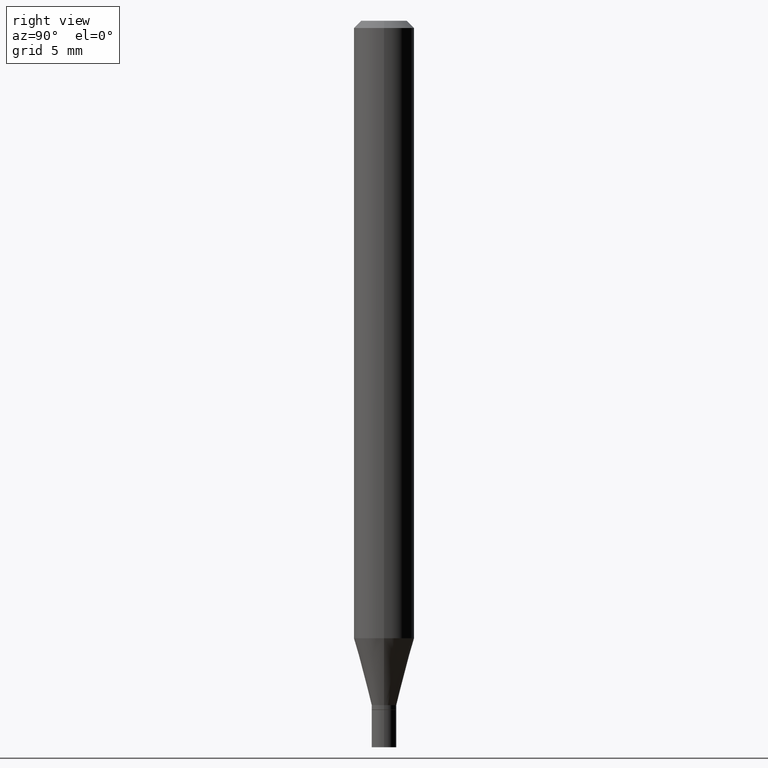
[diagram: clean part render]
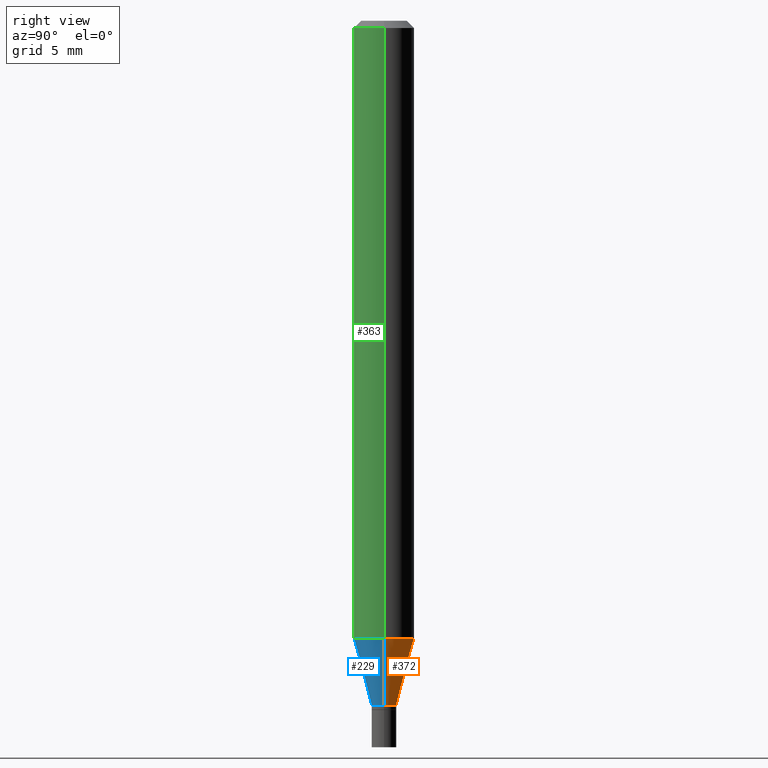
[diagram: same view with three faces highlighted in distinct colors, each labeled with its STEP entity id]
A machine part, right view with three faces highlighted in distinct colors.
Their STEP definitions:

[orange] entity #372 — the highlighted conical surface has half-angle 15 deg.
#9 = CARTESIAN_POINT ( 'NONE',  ( 3.117762711318311949E-29, -4.451338859026439617E-15, -1.274914120119951644 ) ) ;
#16 = CARTESIAN_POINT ( 'NONE',  ( 3.455447423139598357E-29, -4.933463131785365512E-15, -1.413000000000000256 ) ) ;
#39 = DIRECTION ( 'NONE',  ( -0.2588190451025212391, 5.211531920934549464E-15, 0.9659258262890679791 ) ) ;
#45 = DIRECTION ( 'NONE',  ( 1.000000000000000000, -6.982962677686262766E-15, 0.000000000000000000 ) ) ;
#46 = DIRECTION ( 'NONE',  ( 1.000000000000000000, -6.982962677686259611E-15, 0.000000000000000000 ) ) ;
#53 = DIRECTION ( 'NONE',  ( 0.2588190451025212391, 1.565188264969622362E-15, 0.9659258262890679791 ) ) ;
#74 = FACE_OUTER_BOUND ( 'NONE', #281, .T. ) ;
#76 = ORIENTED_EDGE ( 'NONE', *, *, #176, .F. ) ;
#77 = CARTESIAN_POINT ( 'NONE',  ( 0.06250000000000000000, -4.887774026381831286E-15, -1.274914120119951644 ) ) ;
#100 = CIRCLE ( 'NONE', #251, 0.06250000000000000000 ) ;
#110 = LINE ( 'NONE', #182, #130 ) ;
#119 = VECTOR ( 'NONE', #53, 39.37007874015748854 ) ;
#121 = CARTESIAN_POINT ( 'NONE',  ( 0.02549999999999991857, -5.111528680066364398E-15, -1.413000000000000256 ) ) ;
#124 = AXIS2_PLACEMENT_3D ( 'NONE', #16, #149, #346 ) ;
#130 = VECTOR ( 'NONE', #39, 39.37007874015748854 ) ;
#149 = DIRECTION ( 'NONE',  ( -2.445468806185136597E-29, 3.491481338843145583E-15, 1.000000000000000000 ) ) ;
#168 = CIRCLE ( 'NONE', #124, 0.02549999999999991857 ) ;
#175 = ORIENTED_EDGE ( 'NONE', *, *, #338, .T. ) ;
#176 = EDGE_CURVE ( 'NONE', #252, #283, #191, .T. ) ;
#182 = CARTESIAN_POINT ( 'NONE',  ( -0.02549999999999991857, -4.752274734166540987E-15, -1.413000000000000256 ) ) ;
#191 = LINE ( 'NONE', #292, #119 ) ;
#196 = EDGE_CURVE ( 'NONE', #252, #326, #168, .T. ) ;
#206 = EDGE_CURVE ( 'NONE', #283, #249, #100, .T. ) ;
#227 = DIRECTION ( 'NONE',  ( -2.445468806185136597E-29, 3.491481338843145583E-15, 1.000000000000000000 ) ) ;
#231 = CONICAL_SURFACE ( 'NONE', #368, 0.02549999999999991857, 0.2617993877991499629 ) ;
#249 = VERTEX_POINT ( 'NONE', #294 ) ;
#251 = AXIS2_PLACEMENT_3D ( 'NONE', #9, #227, #45 ) ;
#252 = VERTEX_POINT ( 'NONE', #121 ) ;
#275 = ORIENTED_EDGE ( 'NONE', *, *, #196, .T. ) ;
#281 = EDGE_LOOP ( 'NONE', ( #275, #175, #340, #76 ) ) ;
#283 = VERTEX_POINT ( 'NONE', #77 ) ;
#292 = CARTESIAN_POINT ( 'NONE',  ( 0.02549999999999991857, -5.111528680066364398E-15, -1.413000000000000256 ) ) ;
#294 = CARTESIAN_POINT ( 'NONE',  ( -0.06250000000000000000, -4.007249649176377790E-15, -1.274914120119951644 ) ) ;
#300 = CARTESIAN_POINT ( 'NONE',  ( -0.02549999999999991857, -4.379762191671458599E-15, -1.413000000000000256 ) ) ;
#326 = VERTEX_POINT ( 'NONE', #300 ) ;
#338 = EDGE_CURVE ( 'NONE', #326, #249, #110, .T. ) ;
#340 = ORIENTED_EDGE ( 'NONE', *, *, #206, .F. ) ;
#346 = DIRECTION ( 'NONE',  ( 1.000000000000000000, -6.982962677686259611E-15, 0.000000000000000000 ) ) ;
#368 = AXIS2_PLACEMENT_3D ( 'NONE', #446, #371, #46 ) ;
#371 = DIRECTION ( 'NONE',  ( -2.445468806185136597E-29, 3.491481338843145583E-15, 1.000000000000000000 ) ) ;
#372 = ADVANCED_FACE ( 'NONE', ( #74 ), #231, .T. ) ;
#446 = CARTESIAN_POINT ( 'NONE',  ( 3.455447423139598357E-29, -4.933463131785365512E-15, -1.413000000000000256 ) ) ;

[blue] entity #229 — the highlighted conical surface has half-angle 15 deg.
#1 = EDGE_CURVE ( 'NONE', #326, #252, #396, .T. ) ;
#37 = DIRECTION ( 'NONE',  ( 1.000000000000000000, -6.982962677686259611E-15, 0.000000000000000000 ) ) ;
#39 = DIRECTION ( 'NONE',  ( -0.2588190451025212391, 5.211531920934549464E-15, 0.9659258262890679791 ) ) ;
#47 = ORIENTED_EDGE ( 'NONE', *, *, #176, .T. ) ;
#53 = DIRECTION ( 'NONE',  ( 0.2588190451025212391, 1.565188264969622362E-15, 0.9659258262890679791 ) ) ;
#68 = EDGE_LOOP ( 'NONE', ( #463, #285, #47, #112 ) ) ;
#77 = CARTESIAN_POINT ( 'NONE',  ( 0.06250000000000000000, -4.887774026381831286E-15, -1.274914120119951644 ) ) ;
#79 = DIRECTION ( 'NONE',  ( -2.445468806185136597E-29, 3.491481338843145583E-15, 1.000000000000000000 ) ) ;
#110 = LINE ( 'NONE', #182, #130 ) ;
#112 = ORIENTED_EDGE ( 'NONE', *, *, #242, .F. ) ;
#119 = VECTOR ( 'NONE', #53, 39.37007874015748854 ) ;
#120 = DIRECTION ( 'NONE',  ( -2.445468806185136597E-29, 3.491481338843145583E-15, 1.000000000000000000 ) ) ;
#121 = CARTESIAN_POINT ( 'NONE',  ( 0.02549999999999991857, -5.111528680066364398E-15, -1.413000000000000256 ) ) ;
#129 = AXIS2_PLACEMENT_3D ( 'NONE', #153, #280, #37 ) ;
#130 = VECTOR ( 'NONE', #39, 39.37007874015748854 ) ;
#145 = DIRECTION ( 'NONE',  ( 1.000000000000000000, -6.982962677686262766E-15, 0.000000000000000000 ) ) ;
#153 = CARTESIAN_POINT ( 'NONE',  ( 3.455447423139598357E-29, -4.933463131785365512E-15, -1.413000000000000256 ) ) ;
#176 = EDGE_CURVE ( 'NONE', #252, #283, #191, .T. ) ;
#179 = DIRECTION ( 'NONE',  ( 1.000000000000000000, -6.982962677686259611E-15, 0.000000000000000000 ) ) ;
#182 = CARTESIAN_POINT ( 'NONE',  ( -0.02549999999999991857, -4.752274734166540987E-15, -1.413000000000000256 ) ) ;
#191 = LINE ( 'NONE', #292, #119 ) ;
#193 = AXIS2_PLACEMENT_3D ( 'NONE', #449, #120, #179 ) ;
#229 = ADVANCED_FACE ( 'NONE', ( #259 ), #387, .T. ) ;
#242 = EDGE_CURVE ( 'NONE', #249, #283, #420, .T. ) ;
#249 = VERTEX_POINT ( 'NONE', #294 ) ;
#252 = VERTEX_POINT ( 'NONE', #121 ) ;
#259 = FACE_OUTER_BOUND ( 'NONE', #68, .T. ) ;
#280 = DIRECTION ( 'NONE',  ( -2.445468806185136597E-29, 3.491481338843145583E-15, 1.000000000000000000 ) ) ;
#283 = VERTEX_POINT ( 'NONE', #77 ) ;
#285 = ORIENTED_EDGE ( 'NONE', *, *, #1, .T. ) ;
#292 = CARTESIAN_POINT ( 'NONE',  ( 0.02549999999999991857, -5.111528680066364398E-15, -1.413000000000000256 ) ) ;
#294 = CARTESIAN_POINT ( 'NONE',  ( -0.06250000000000000000, -4.007249649176377790E-15, -1.274914120119951644 ) ) ;
#300 = CARTESIAN_POINT ( 'NONE',  ( -0.02549999999999991857, -4.379762191671458599E-15, -1.413000000000000256 ) ) ;
#326 = VERTEX_POINT ( 'NONE', #300 ) ;
#332 = CARTESIAN_POINT ( 'NONE',  ( 3.117762711318311949E-29, -4.451338859026439617E-15, -1.274914120119951644 ) ) ;
#338 = EDGE_CURVE ( 'NONE', #326, #249, #110, .T. ) ;
#352 = AXIS2_PLACEMENT_3D ( 'NONE', #332, #79, #145 ) ;
#387 = CONICAL_SURFACE ( 'NONE', #193, 0.02549999999999991857, 0.2617993877991499629 ) ;
#396 = CIRCLE ( 'NONE', #129, 0.02549999999999991857 ) ;
#420 = CIRCLE ( 'NONE', #352, 0.06250000000000000000 ) ;
#449 = CARTESIAN_POINT ( 'NONE',  ( 3.455447423139598357E-29, -4.933463131785365512E-15, -1.413000000000000256 ) ) ;
#463 = ORIENTED_EDGE ( 'NONE', *, *, #338, .F. ) ;

[green] entity #363 — the highlighted cylindrical surface (edge-blend (fillet) strip) has radius 1.5875 mm, axis along (-0, 0, 1).
#8 = DIRECTION ( 'NONE',  ( 1.000000000000000000, -6.982962677686266711E-15, 4.876176775795935793E-29 ) ) ;
#14 = ORIENTED_EDGE ( 'NONE', *, *, #293, .F. ) ;
#40 = EDGE_CURVE ( 'NONE', #245, #127, #373, .T. ) ;
#77 = CARTESIAN_POINT ( 'NONE',  ( 0.06250000000000000000, -4.887774026381831286E-15, -1.274914120119951644 ) ) ;
#79 = DIRECTION ( 'NONE',  ( -2.445468806185136597E-29, 3.491481338843145583E-15, 1.000000000000000000 ) ) ;
#86 = LINE ( 'NONE', #228, #291 ) ;
#88 = AXIS2_PLACEMENT_3D ( 'NONE', #230, #267, #8 ) ;
#103 = EDGE_CURVE ( 'NONE', #283, #127, #218, .T. ) ;
#127 = VERTEX_POINT ( 'NONE', #244 ) ;
#145 = DIRECTION ( 'NONE',  ( 1.000000000000000000, -6.982962677686262766E-15, 0.000000000000000000 ) ) ;
#178 = DIRECTION ( 'NONE',  ( 1.000000000000000000, -6.982962677686266711E-15, 0.000000000000000000 ) ) ;
#189 = EDGE_LOOP ( 'NONE', ( #14, #399, #381, #353 ) ) ;
#203 = DIRECTION ( 'NONE',  ( -2.445468806185136877E-29, 3.491481338843145188E-15, 1.000000000000000000 ) ) ;
#211 = DIRECTION ( 'NONE',  ( -2.445468806185136597E-29, 3.491481338843145583E-15, 1.000000000000000000 ) ) ;
#218 = LINE ( 'NONE', #461, #455 ) ;
#226 = FACE_OUTER_BOUND ( 'NONE', #189, .T. ) ;
#228 = CARTESIAN_POINT ( 'NONE',  ( -0.06250000000000000000, 4.440892098500626162E-16, -3.074334431409316114E-30 ) ) ;
#230 = CARTESIAN_POINT ( 'NONE',  ( 0.000000000000000000, 0.000000000000000000, 0.000000000000000000 ) ) ;
#242 = EDGE_CURVE ( 'NONE', #249, #283, #420, .T. ) ;
#244 = CARTESIAN_POINT ( 'NONE',  ( 0.06250000000000000000, -4.888073874380388472E-16, -0.01499999999999999944 ) ) ;
#245 = VERTEX_POINT ( 'NONE', #438 ) ;
#249 = VERTEX_POINT ( 'NONE', #294 ) ;
#267 = DIRECTION ( 'NONE',  ( -2.445468806185136597E-29, 3.491481338843145583E-15, 1.000000000000000000 ) ) ;
#283 = VERTEX_POINT ( 'NONE', #77 ) ;
#291 = VECTOR ( 'NONE', #442, 39.37007874015748143 ) ;
#293 = EDGE_CURVE ( 'NONE', #249, #245, #86, .T. ) ;
#294 = CARTESIAN_POINT ( 'NONE',  ( -0.06250000000000000000, -4.007249649176377790E-15, -1.274914120119951644 ) ) ;
#317 = CARTESIAN_POINT ( 'NONE',  ( 3.668203209277705088E-31, -5.237222008264718399E-17, -0.01499999999999999944 ) ) ;
#332 = CARTESIAN_POINT ( 'NONE',  ( 3.117762711318311949E-29, -4.451338859026439617E-15, -1.274914120119951644 ) ) ;
#352 = AXIS2_PLACEMENT_3D ( 'NONE', #332, #79, #145 ) ;
#353 = ORIENTED_EDGE ( 'NONE', *, *, #40, .F. ) ;
#363 = ADVANCED_FACE ( 'NONE', ( #226 ), #453, .T. ) ;
#373 = CIRCLE ( 'NONE', #425, 0.06250000000000000000 ) ;
#381 = ORIENTED_EDGE ( 'NONE', *, *, #103, .T. ) ;
#399 = ORIENTED_EDGE ( 'NONE', *, *, #242, .T. ) ;
#420 = CIRCLE ( 'NONE', #352, 0.06250000000000000000 ) ;
#425 = AXIS2_PLACEMENT_3D ( 'NONE', #317, #211, #178 ) ;
#438 = CARTESIAN_POINT ( 'NONE',  ( -0.06250000000000000000, -1.807766329704480929E-15, -0.01499999999999999944 ) ) ;
#442 = DIRECTION ( 'NONE',  ( -2.445468806185136877E-29, 3.491481338843145188E-15, 1.000000000000000000 ) ) ;
#453 = CYLINDRICAL_SURFACE ( 'NONE', #88, 0.06250000000000000000 ) ;
#455 = VECTOR ( 'NONE', #203, 39.37007874015748143 ) ;
#461 = CARTESIAN_POINT ( 'NONE',  ( 0.06250000000000000000, -4.364351673553916694E-16, 3.047610484872459871E-30 ) ) ;